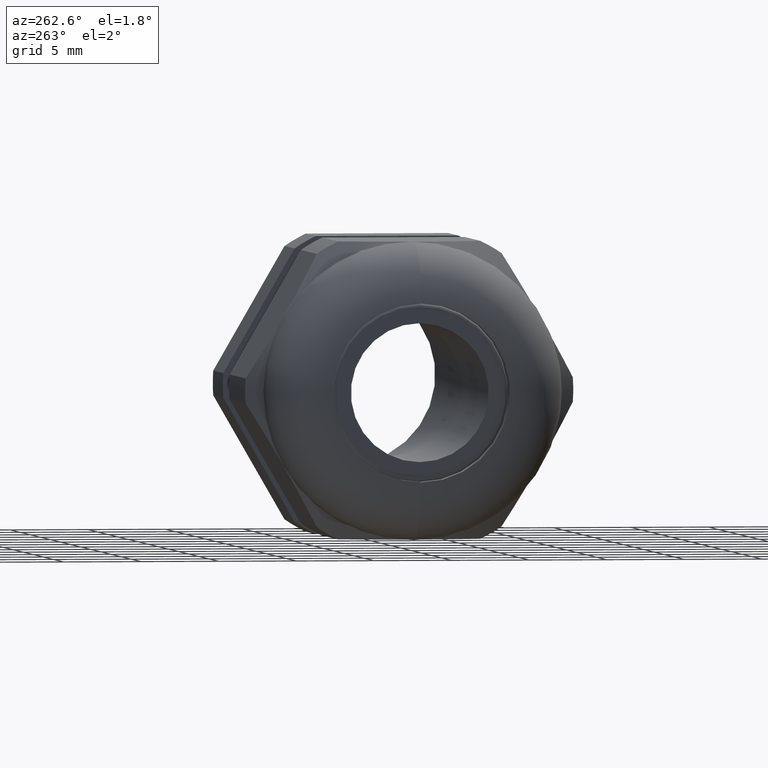
[diagram: clean part render]
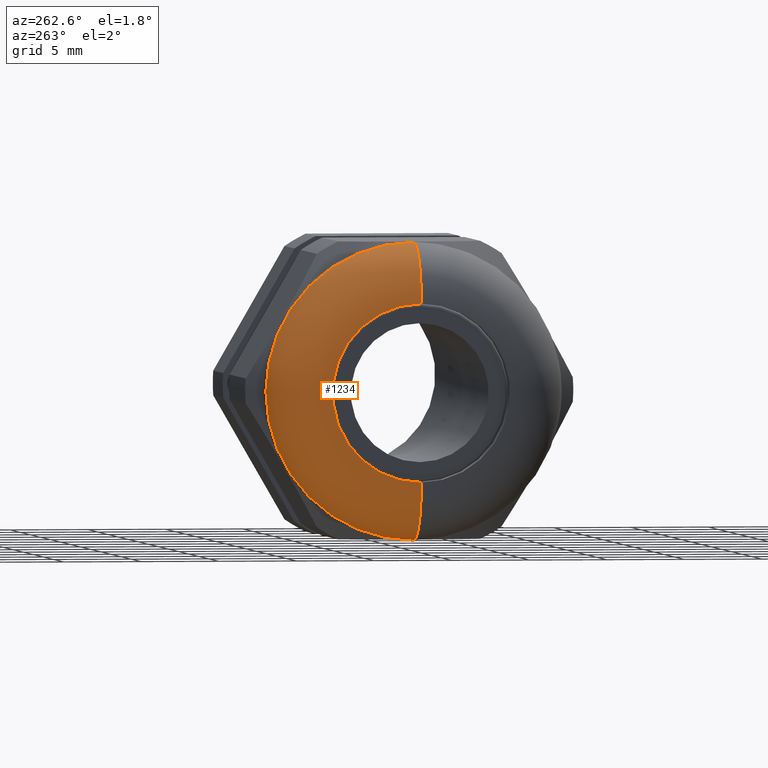
[diagram: same view with one face highlighted and labeled with its STEP entity id]
A machine part, auxiliary view. The second image highlights one B-rep face of the part: STEP entity #1234.
In plain terms, the highlighted toroidal blend (fillet) surface has major radius 5.715 mm and minor (blend) radius 3.81 mm.
Its self-contained STEP definition (entity closure, byte-faithful):
#1212 = ORIENTED_EDGE ( 'NONE', *, *, #1213, .T. ) ;
#1213 = EDGE_CURVE ( 'NONE', #1296, #1214, #3407, .T. ) ;
#1214 = VERTEX_POINT ( 'NONE', #3467 ) ;
#1231 = ORIENTED_EDGE ( 'NONE', *, *, #1232, .T. ) ;
#1232 = EDGE_CURVE ( 'NONE', #1291, #1296, #3493, .T. ) ;
#1234 = ADVANCED_FACE ( 'NONE', ( #3489 ), #3488, .T. ) ;
#1235 = EDGE_LOOP ( 'NONE', ( #1289, #1231, #1212, #1293 ) ) ;
#1289 = ORIENTED_EDGE ( 'NONE', *, *, #1290, .F. ) ;
#1290 = EDGE_CURVE ( 'NONE', #1291, #1292, #3625, .T. ) ;
#1291 = VERTEX_POINT ( 'NONE', #3620 ) ;
#1292 = VERTEX_POINT ( 'NONE', #3619 ) ;
#1293 = ORIENTED_EDGE ( 'NONE', *, *, #1294, .F. ) ;
#1294 = EDGE_CURVE ( 'NONE', #1292, #1214, #3618, .T. ) ;
#1296 = VERTEX_POINT ( 'NONE', #3613 ) ;
#3407 = CIRCLE ( 'NONE', #3470, 0.2249999999999999200 ) ;
#3413 = CARTESIAN_POINT ( 'NONE',  ( -1.179999999999999700, 0.0000000000000000000, 0.0000000000000000000 ) ) ;
#3467 = CARTESIAN_POINT ( 'NONE',  ( -1.179999999999999700, 2.755455298081544200E-017, 0.2249999999999999200 ) ) ;
#3468 = DIRECTION ( 'NONE',  ( 0.0000000000000000000, 0.0000000000000000000, -1.000000000000000000 ) ) ;
#3469 = DIRECTION ( 'NONE',  ( 1.000000000000000000, 0.0000000000000000000, 0.0000000000000000000 ) ) ;
#3470 = AXIS2_PLACEMENT_3D ( 'NONE', #3413, #3469, #3468 ) ;
#3483 = DIRECTION ( 'NONE',  ( 0.0000000000000000000, 0.0000000000000000000, 1.000000000000000000 ) ) ;
#3484 = DIRECTION ( 'NONE',  ( -1.000000000000000000, 0.0000000000000000000, 0.0000000000000000000 ) ) ;
#3485 = CARTESIAN_POINT ( 'NONE',  ( -1.029999999999999600, 0.0000000000000000000, 0.0000000000000000000 ) ) ;
#3486 = AXIS2_PLACEMENT_3D ( 'NONE', #3485, #3484, #3483 ) ;
#3488 = TOROIDAL_SURFACE ( 'NONE', #3486, 0.2250000000000002600, 0.1499999999999999900 ) ;
#3489 = FACE_OUTER_BOUND ( 'NONE', #1235, .T. ) ;
#3490 = DIRECTION ( 'NONE',  ( 0.0000000000000000000, -1.224646799147353000E-016, 1.000000000000000000 ) ) ;
#3491 = DIRECTION ( 'NONE',  ( 0.0000000000000000000, 1.000000000000000000, 1.224646799147353200E-016 ) ) ;
#3492 = AXIS2_PLACEMENT_3D ( 'NONE', #3497, #3491, #3490 ) ;
#3493 = CIRCLE ( 'NONE', #3492, 0.1499999999999999900 ) ;
#3497 = CARTESIAN_POINT ( 'NONE',  ( -1.029999999999999600, 2.755455298081548200E-017, -0.2250000000000002600 ) ) ;
#3613 = CARTESIAN_POINT ( 'NONE',  ( -1.179999999999999700, 0.0000000000000000000, -0.2249999999999999200 ) ) ;
#3614 = DIRECTION ( 'NONE',  ( 0.0000000000000000000, 0.0000000000000000000, -1.000000000000000000 ) ) ;
#3615 = DIRECTION ( 'NONE',  ( 0.0000000000000000000, -1.000000000000000000, 0.0000000000000000000 ) ) ;
#3616 = CARTESIAN_POINT ( 'NONE',  ( -1.029999999999999600, 0.0000000000000000000, 0.2250000000000002600 ) ) ;
#3617 = AXIS2_PLACEMENT_3D ( 'NONE', #3616, #3615, #3614 ) ;
#3618 = CIRCLE ( 'NONE', #3617, 0.1499999999999999900 ) ;
#3619 = CARTESIAN_POINT ( 'NONE',  ( -1.029999999999999600, 4.592425496802577300E-017, 0.3750000000000002200 ) ) ;
#3620 = CARTESIAN_POINT ( 'NONE',  ( -1.029999999999999600, 0.0000000000000000000, -0.3750000000000002200 ) ) ;
#3621 = DIRECTION ( 'NONE',  ( 0.0000000000000000000, 0.0000000000000000000, 1.000000000000000000 ) ) ;
#3622 = DIRECTION ( 'NONE',  ( 1.000000000000000000, 0.0000000000000000000, 0.0000000000000000000 ) ) ;
#3623 = CARTESIAN_POINT ( 'NONE',  ( -1.029999999999999600, 0.0000000000000000000, 0.0000000000000000000 ) ) ;
#3624 = AXIS2_PLACEMENT_3D ( 'NONE', #3623, #3622, #3621 ) ;
#3625 = CIRCLE ( 'NONE', #3624, 0.3750000000000002200 ) ;